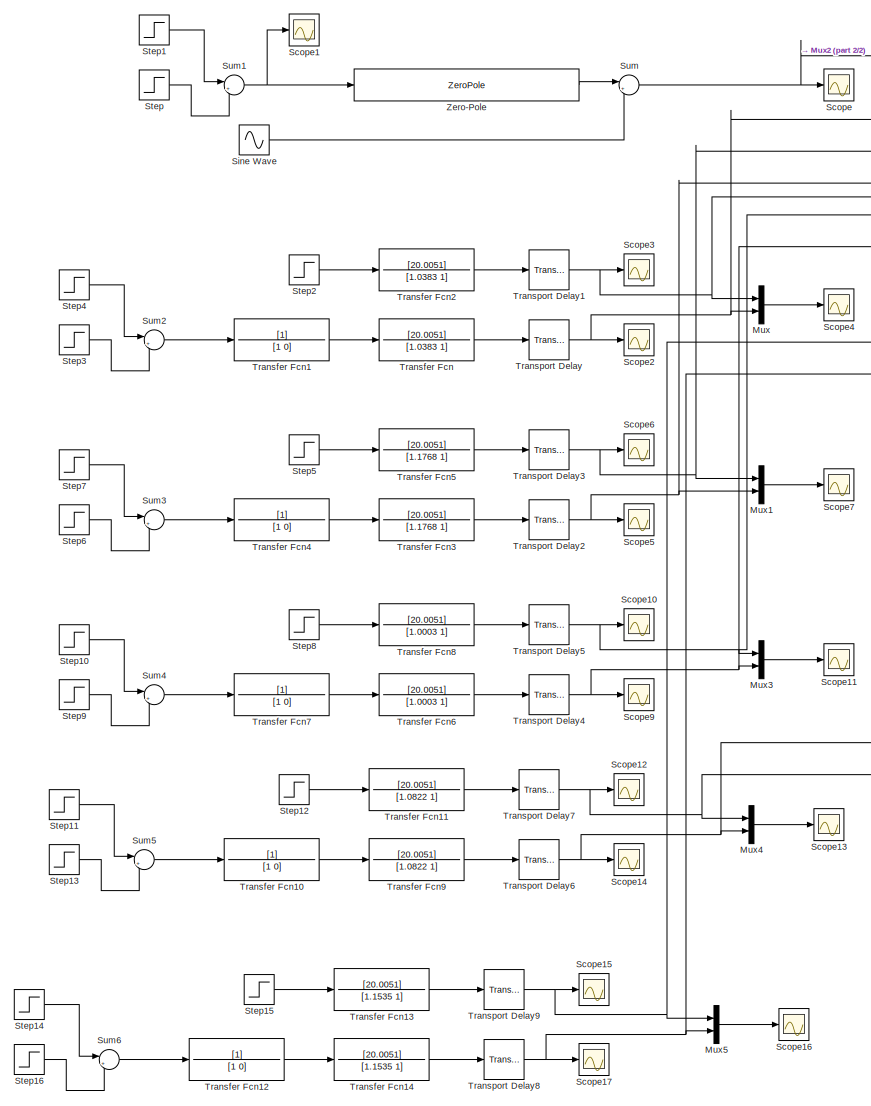
[diagram: root canvas - part 1/2, left side, full height]
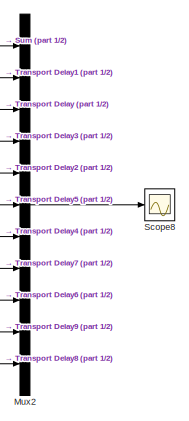
[diagram: root canvas - part 2/2, top right region]
MODEL slx_6b1b628f3b8a
KIND model
CONFIG AbsTol = auto
CONFIG EnableMultiTasking = off
CONFIG FixedStep = auto
CONFIG MaxStep = auto
CONFIG MinStep = auto
CONFIG RelTol = 1e-3
CONFIG SampleTimeConstraint = Unconstrained
CONFIG SolverName = VariableStepAuto
CONFIG StartTime = 0.0
CONFIG StopTime = 15
BLOCK [Mux] Mux
  DisplayOption = bar
  Inputs = 2
  Ports = [2, 1]
BLOCK [Mux] Mux1
  DisplayOption = bar
  Inputs = 2
  Ports = [2, 1]
BLOCK [Mux] Mux2
  DisplayOption = bar
  Inputs = 11
  Ports = [11, 1]
BLOCK [Mux] Mux3
  DisplayOption = bar
  Inputs = 2
  Ports = [2, 1]
BLOCK [Mux] Mux4
  DisplayOption = bar
  Inputs = 2
  Ports = [2, 1]
BLOCK [Mux] Mux5
  DisplayOption = bar
  Inputs = 2
  Ports = [2, 1]
BLOCK [Scope] Scope
  Floating = off
  NumInputPorts = 1
  Ports = [1]
  ScopeSpecificationString = Simulink.scopes.TimeScopeBlockCfg('CurrentConfiguration', extmgr.ConfigurationSet(extmgr.Configuration('Core','General UI',true,'FigureColor',[1 1 1]),extmgr.Configuration('Core','Source UI',true),extmgr.Configuration('Sources','WiredSimulink',true,'DataLogging',true,'DataLoggingVariableName','Q3','DataLoggingLimitDataPoints',true,'DataLoggingDecimateData',true,'DataLoggingSaveFormat','Array'),ext...<+1720ch>
BLOCK [Scope] Scope1
  Floating = off
  NumInputPorts = 1
  Ports = [1]
  ScopeSpecificationString = Simulink.scopes.TimeScopeBlockCfg('CurrentConfiguration', extmgr.ConfigurationSet(extmgr.Configuration('Core','General UI',true),extmgr.Configuration('Core','Source UI',true),extmgr.Configuration('Sources','WiredSimulink',true,'DataLoggingVariableName','ScopeData1'),extmgr.Configuration('Visuals','Time Domain',true,'SerializedDisplays',{struct('MinYLimReal','-0.125','MaxYLimReal','1.125','YLabelRe...<+1351ch>
BLOCK [Scope] Scope10
  Floating = off
  NumInputPorts = 1
  Ports = [1]
  ScopeSpecificationString = Simulink.scopes.TimeScopeBlockCfg('CurrentConfiguration', extmgr.ConfigurationSet(extmgr.Configuration('Core','General UI',true,'FigureColor',[1 1 1]),extmgr.Configuration('Core','Source UI',true),extmgr.Configuration('Sources','WiredSimulink',true,'DataLoggingVariableName','G3_3','DataLoggingSaveFormat','Array','DataLogging',true,'DataLoggingLimitDataPoints',true,'DataLoggingDecimateData',true),e...<+1735ch>
BLOCK [Scope] Scope11
  Floating = off
  NumInputPorts = 1
  Ports = [1]
  ScopeSpecificationString = Simulink.scopes.TimeScopeBlockCfg('CurrentConfiguration', extmgr.ConfigurationSet(extmgr.Configuration('Core','General UI',true,'FigureColor',[1 1 1]),extmgr.Configuration('Core','Source UI',true),extmgr.Configuration('Sources','WiredSimulink',true,'DataLoggingVariableName','ScopeData9','DataLoggingSaveFormat','Array'),extmgr.Configuration('Visuals','Time Domain',true,'SerializedDisplays',{struct(...<+1694ch>
BLOCK [Scope] Scope12
  Floating = off
  NumInputPorts = 1
  Ports = [1]
  ScopeSpecificationString = Simulink.scopes.TimeScopeBlockCfg('CurrentConfiguration', extmgr.ConfigurationSet(extmgr.Configuration('Core','General UI',true,'FigureColor',[1 1 1]),extmgr.Configuration('Core','Source UI',true),extmgr.Configuration('Sources','WiredSimulink',true,'DataLoggingVariableName','G3_4','DataLoggingSaveFormat','Array','DataLogging',true,'DataLoggingLimitDataPoints',true,'DataLoggingDecimateData',true),e...<+1735ch>
BLOCK [Scope] Scope13
  Floating = off
  NumInputPorts = 1
  Ports = [1]
  ScopeSpecificationString = Simulink.scopes.TimeScopeBlockCfg('CurrentConfiguration', extmgr.ConfigurationSet(extmgr.Configuration('Core','General UI',true,'FigureColor',[1 1 1]),extmgr.Configuration('Core','Source UI',true),extmgr.Configuration('Sources','WiredSimulink',true,'DataLoggingVariableName','ScopeData2','DataLoggingSaveFormat','Array'),extmgr.Configuration('Visuals','Time Domain',true,'SerializedDisplays',{struct(...<+1694ch>
BLOCK [Scope] Scope14
  Floating = off
  NumInputPorts = 1
  Ports = [1]
  ScopeSpecificationString = Simulink.scopes.TimeScopeBlockCfg('CurrentConfiguration', extmgr.ConfigurationSet(extmgr.Configuration('Core','General UI',true,'FigureColor',[1 1 1]),extmgr.Configuration('Core','Source UI',true),extmgr.Configuration('Sources','WiredSimulink',true,'DataLoggingVariableName','ScopeData3','DataLoggingSaveFormat','Array'),extmgr.Configuration('Visuals','Time Domain',true,'SerializedDisplays',{struct(...<+1669ch>
BLOCK [Scope] Scope15
  Floating = off
  NumInputPorts = 1
  Ports = [1]
  ScopeSpecificationString = Simulink.scopes.TimeScopeBlockCfg('CurrentConfiguration', extmgr.ConfigurationSet(extmgr.Configuration('Core','General UI',true,'FigureColor',[1 1 1]),extmgr.Configuration('Core','Source UI',true),extmgr.Configuration('Sources','WiredSimulink',true,'DataLoggingVariableName','G3_5','DataLoggingSaveFormat','Array','DataLogging',true,'DataLoggingLimitDataPoints',true,'DataLoggingDecimateData',true),e...<+1735ch>
BLOCK [Scope] Scope16
  Floating = off
  NumInputPorts = 1
  Ports = [1]
  ScopeSpecificationString = Simulink.scopes.TimeScopeBlockCfg('CurrentConfiguration', extmgr.ConfigurationSet(extmgr.Configuration('Core','General UI',true,'FigureColor',[1 1 1]),extmgr.Configuration('Core','Source UI',true),extmgr.Configuration('Sources','WiredSimulink',true,'DataLoggingVariableName','ScopeData5','DataLoggingSaveFormat','Array'),extmgr.Configuration('Visuals','Time Domain',true,'SerializedDisplays',{struct(...<+1694ch>
BLOCK [Scope] Scope17
  Floating = off
  NumInputPorts = 1
  Ports = [1]
  ScopeSpecificationString = Simulink.scopes.TimeScopeBlockCfg('CurrentConfiguration', extmgr.ConfigurationSet(extmgr.Configuration('Core','General UI',true,'FigureColor',[1 1 1]),extmgr.Configuration('Core','Source UI',true),extmgr.Configuration('Sources','WiredSimulink',true,'DataLoggingVariableName','ScopeData6','DataLoggingSaveFormat','Array'),extmgr.Configuration('Visuals','Time Domain',true,'SerializedDisplays',{struct(...<+1669ch>
BLOCK [Scope] Scope2
  Floating = off
  NumInputPorts = 1
  Ports = [1]
  ScopeSpecificationString = Simulink.scopes.TimeScopeBlockCfg('CurrentConfiguration', extmgr.ConfigurationSet(extmgr.Configuration('Core','General UI',true,'FigureColor',[1 1 1]),extmgr.Configuration('Core','Source UI',true),extmgr.Configuration('Sources','WiredSimulink',true,'DataLoggingVariableName','ScopeData1','DataLoggingSaveFormat','Array'),extmgr.Configuration('Visuals','Time Domain',true,'SerializedDisplays',{struct(...<+1669ch>
BLOCK [Scope] Scope3
  Floating = off
  NumInputPorts = 1
  Ports = [1]
  ScopeSpecificationString = Simulink.scopes.TimeScopeBlockCfg('CurrentConfiguration', extmgr.ConfigurationSet(extmgr.Configuration('Core','General UI',true,'FigureColor',[1 1 1]),extmgr.Configuration('Core','Source UI',true),extmgr.Configuration('Sources','WiredSimulink',true,'DataLoggingVariableName','G3_1','DataLoggingSaveFormat','Array','DataLogging',true,'DataLoggingLimitDataPoints',true,'DataLoggingDecimateData',true),e...<+1735ch>
BLOCK [Scope] Scope4
  Floating = off
  NumInputPorts = 1
  Ports = [1]
  ScopeSpecificationString = Simulink.scopes.TimeScopeBlockCfg('CurrentConfiguration', extmgr.ConfigurationSet(extmgr.Configuration('Core','General UI',true,'FigureColor',[1 1 1]),extmgr.Configuration('Core','Source UI',true),extmgr.Configuration('Sources','WiredSimulink',true,'DataLoggingVariableName','ScopeData3','DataLoggingSaveFormat','Array'),extmgr.Configuration('Visuals','Time Domain',true,'SerializedDisplays',{struct(...<+1694ch>
BLOCK [Scope] Scope5
  Floating = off
  NumInputPorts = 1
  Ports = [1]
  ScopeSpecificationString = Simulink.scopes.TimeScopeBlockCfg('CurrentConfiguration', extmgr.ConfigurationSet(extmgr.Configuration('Core','General UI',true,'FigureColor',[1 1 1]),extmgr.Configuration('Core','Source UI',true),extmgr.Configuration('Sources','WiredSimulink',true,'DataLoggingVariableName','ScopeData4','DataLoggingSaveFormat','Array'),extmgr.Configuration('Visuals','Time Domain',true,'SerializedDisplays',{struct(...<+1703ch>
BLOCK [Scope] Scope6
  Floating = off
  NumInputPorts = 1
  Ports = [1]
  ScopeSpecificationString = Simulink.scopes.TimeScopeBlockCfg('CurrentConfiguration', extmgr.ConfigurationSet(extmgr.Configuration('Core','General UI',true,'FigureColor',[1 1 1]),extmgr.Configuration('Core','Source UI',true),extmgr.Configuration('Sources','WiredSimulink',true,'DataLoggingVariableName','G3_2','DataLoggingSaveFormat','Array','DataLogging',true,'DataLoggingLimitDataPoints',true,'DataLoggingDecimateData',true),e...<+1780ch>
BLOCK [Scope] Scope7
  Floating = off
  NumInputPorts = 1
  Ports = [1]
  ScopeSpecificationString = Simulink.scopes.TimeScopeBlockCfg('CurrentConfiguration', extmgr.ConfigurationSet(extmgr.Configuration('Core','General UI',true,'FigureColor',[1 1 1]),extmgr.Configuration('Core','Source UI',true),extmgr.Configuration('Sources','WiredSimulink',true,'DataLoggingVariableName','ScopeData6','DataLoggingSaveFormat','Array'),extmgr.Configuration('Visuals','Time Domain',true,'SerializedDisplays',{struct(...<+1694ch>
BLOCK [Scope] Scope8
  Floating = off
  NumInputPorts = 1
  Ports = [1]
  ScopeSpecificationString = Simulink.scopes.TimeScopeBlockCfg('CurrentConfiguration', extmgr.ConfigurationSet(extmgr.Configuration('Core','General UI',true,'FigureColor',[1 1 1]),extmgr.Configuration('Core','Source UI',true),extmgr.Configuration('Sources','WiredSimulink',true,'DataLoggingVariableName','ScopeData7','DataLoggingSaveFormat','Array'),extmgr.Configuration('Visuals','Time Domain',true,'SerializedDisplays',{struct(...<+2118ch>
BLOCK [Scope] Scope9
  Floating = off
  NumInputPorts = 1
  Ports = [1]
  ScopeSpecificationString = Simulink.scopes.TimeScopeBlockCfg('CurrentConfiguration', extmgr.ConfigurationSet(extmgr.Configuration('Core','General UI',true,'FigureColor',[1 1 1]),extmgr.Configuration('Core','Source UI',true),extmgr.Configuration('Sources','WiredSimulink',true,'DataLoggingVariableName','ScopeData10','DataLoggingSaveFormat','Array'),extmgr.Configuration('Visuals','Time Domain',true,'SerializedDisplays',{struct...<+1670ch>
BLOCK [Sin] Sine Wave
  Amplitude = 0.05
  Frequency = 40
  Ports = [0, 1]
  SampleTime = 0
BLOCK [Step] Step
  After = 0
  SampleTime = 0
  Time = 0
BLOCK [Step] Step1
  After = 0
  Before = 1
  SampleTime = 0
  Time = 0.1
BLOCK [Step] Step10
  After = 0
  Before = 1
  SampleTime = 0
  Time = 0.1
BLOCK [Step] Step11
  After = 0
  Before = 1
  SampleTime = 0
  Time = 0.1
BLOCK [Step] Step12
  After = 0.1
  SampleTime = 0
  Time = 0
BLOCK [Step] Step13
  After = 0
  SampleTime = 0
  Time = 0
BLOCK [Step] Step14
  After = 0
  Before = 1
  SampleTime = 0
  Time = 0.1
BLOCK [Step] Step15
  After = 0.1
  SampleTime = 0
  Time = 0
BLOCK [Step] Step16
  After = 0
  SampleTime = 0
  Time = 0
BLOCK [Step] Step2
  After = 0.1
  SampleTime = 0
  Time = 0
BLOCK [Step] Step3
  After = 0
  SampleTime = 0
  Time = 0
BLOCK [Step] Step4
  After = 0
  Before = 1
  SampleTime = 0
  Time = 0.1
BLOCK [Step] Step5
  After = 0.1
  SampleTime = 0
  Time = 0
BLOCK [Step] Step6
  After = 0
  SampleTime = 0
  Time = 0
BLOCK [Step] Step7
  After = 0
  Before = 1
  SampleTime = 0
  Time = 0.1
BLOCK [Step] Step8
  After = 0.1
  SampleTime = 0
  Time = 0
BLOCK [Step] Step9
  After = 0
  SampleTime = 0
  Time = 0
BLOCK [Sum] Sum
  Inputs = |++
  Ports = [2, 1]
BLOCK [Sum] Sum1
  Inputs = |++
  Ports = [2, 1]
BLOCK [Sum] Sum2
  Inputs = |++
  Ports = [2, 1]
BLOCK [Sum] Sum3
  Inputs = |++
  Ports = [2, 1]
BLOCK [Sum] Sum4
  Inputs = |++
  Ports = [2, 1]
BLOCK [Sum] Sum5
  Inputs = |++
  Ports = [2, 1]
BLOCK [Sum] Sum6
  Inputs = |++
  Ports = [2, 1]
BLOCK [TransferFcn] Transfer Fcn
  Denominator = [1.0383 1]
  Numerator = [20.0051]
BLOCK [TransferFcn] Transfer Fcn1
  Denominator = [1 0]
BLOCK [TransferFcn] Transfer Fcn10
  Denominator = [1 0]
BLOCK [TransferFcn] Transfer Fcn11
  Denominator = [1.0822 1]
  Numerator = [20.0051]
BLOCK [TransferFcn] Transfer Fcn12
  Denominator = [1 0]
BLOCK [TransferFcn] Transfer Fcn13
  Denominator = [1.1535 1]
  Numerator = [20.0051]
BLOCK [TransferFcn] Transfer Fcn14
  Denominator = [1.1535 1]
  Numerator = [20.0051]
BLOCK [TransferFcn] Transfer Fcn2
  Denominator = [1.0383 1]
  Numerator = [20.0051]
BLOCK [TransferFcn] Transfer Fcn3
  Denominator = [1.1768 1]
  Numerator = [20.0051]
BLOCK [TransferFcn] Transfer Fcn4
  Denominator = [1 0]
BLOCK [TransferFcn] Transfer Fcn5
  Denominator = [1.1768 1]
  Numerator = [20.0051]
BLOCK [TransferFcn] Transfer Fcn6
  Denominator = [1.0003 1]
  Numerator = [20.0051]
BLOCK [TransferFcn] Transfer Fcn7
  Denominator = [1 0]
BLOCK [TransferFcn] Transfer Fcn8
  Denominator = [1.0003 1]
  Numerator = [20.0051]
BLOCK [TransferFcn] Transfer Fcn9
  Denominator = [1.0822 1]
  Numerator = [20.0051]
BLOCK [TransportDelay] Transport Delay
  DelayTime = 0.8488
  Ports = [1, 1]
BLOCK [TransportDelay] Transport Delay1
  DelayTime = 0.8488
  Ports = [1, 1]
BLOCK [TransportDelay] Transport Delay2
  DelayTime = 0.8488
  Ports = [1, 1]
BLOCK [TransportDelay] Transport Delay3
  DelayTime = 0.8488
  Ports = [1, 1]
BLOCK [TransportDelay] Transport Delay4
  DelayTime = 0.8488
  Ports = [1, 1]
BLOCK [TransportDelay] Transport Delay5
  DelayTime = 0.8488
  Ports = [1, 1]
BLOCK [TransportDelay] Transport Delay6
  DelayTime = 0.8488
  Ports = [1, 1]
BLOCK [TransportDelay] Transport Delay7
  DelayTime = 0.8488
  Ports = [1, 1]
BLOCK [TransportDelay] Transport Delay8
  DelayTime = 0.8488
  Ports = [1, 1]
BLOCK [TransportDelay] Transport Delay9
  DelayTime = 0.8488
  Ports = [1, 1]
BLOCK [ZeroPole] Zero-Pole
  Gain = [120]
  Poles = [ 0 -1 -2 -3]
  Zeros = []
LINE Mux1:1 -> Scope7:1
LINE Mux2:1 -> Scope8:1
LINE Mux3:1 -> Scope11:1
LINE Mux4:1 -> Scope13:1
LINE Mux5:1 -> Scope16:1
LINE Mux:1 -> Scope4:1
LINE Sine Wave:1 -> Sum:2
LINE Step10:1 -> Sum4:1
LINE Step11:1 -> Sum5:1
LINE Step12:1 -> Transfer Fcn11:1
LINE Step13:1 -> Sum5:2
LINE Step14:1 -> Sum6:1
LINE Step15:1 -> Transfer Fcn13:1
LINE Step16:1 -> Sum6:2
LINE Step1:1 -> Sum1:1
LINE Step2:1 -> Transfer Fcn2:1
LINE Step3:1 -> Sum2:2
LINE Step4:1 -> Sum2:1
LINE Step5:1 -> Transfer Fcn5:1
LINE Step6:1 -> Sum3:2
LINE Step7:1 -> Sum3:1
LINE Step8:1 -> Transfer Fcn8:1
LINE Step9:1 -> Sum4:2
LINE Step:1 -> Sum1:2
NET Sum1:1 -> Scope1:1, Zero-Pole:1
LINE Sum2:1 -> Transfer Fcn1:1
LINE Sum3:1 -> Transfer Fcn4:1
LINE Sum4:1 -> Transfer Fcn7:1
LINE Sum5:1 -> Transfer Fcn10:1
LINE Sum6:1 -> Transfer Fcn12:1
NET Sum:1 -> Mux2:1, Scope:1
LINE Transfer Fcn10:1 -> Transfer Fcn9:1
LINE Transfer Fcn11:1 -> Transport Delay7:1
LINE Transfer Fcn12:1 -> Transfer Fcn14:1
LINE Transfer Fcn13:1 -> Transport Delay9:1
LINE Transfer Fcn14:1 -> Transport Delay8:1
LINE Transfer Fcn1:1 -> Transfer Fcn:1
LINE Transfer Fcn2:1 -> Transport Delay1:1
LINE Transfer Fcn3:1 -> Transport Delay2:1
LINE Transfer Fcn4:1 -> Transfer Fcn3:1
LINE Transfer Fcn5:1 -> Transport Delay3:1
LINE Transfer Fcn6:1 -> Transport Delay4:1
LINE Transfer Fcn7:1 -> Transfer Fcn6:1
LINE Transfer Fcn8:1 -> Transport Delay5:1
LINE Transfer Fcn9:1 -> Transport Delay6:1
LINE Transfer Fcn:1 -> Transport Delay:1
NET Transport Delay1:1 -> Mux2:2, Mux:1, Scope3:1
NET Transport Delay2:1 -> Mux1:2, Mux2:5, Scope5:1
NET Transport Delay3:1 -> Mux1:1, Mux2:4, Scope6:1
NET Transport Delay4:1 -> Mux2:7, Mux3:2, Scope9:1
NET Transport Delay5:1 -> Mux2:6, Mux3:1, Scope10:1
NET Transport Delay6:1 -> Mux2:9, Mux4:2, Scope14:1
NET Transport Delay7:1 -> Mux2:8, Mux4:1, Scope12:1
NET Transport Delay8:1 -> Mux2:11, Mux5:2, Scope17:1
NET Transport Delay9:1 -> Mux2:10, Mux5:1, Scope15:1
NET Transport Delay:1 -> Mux2:3, Mux:2, Scope2:1
LINE Zero-Pole:1 -> Sum:1
note: NET lines group one-source signal fan-out (src -> all destinations, sorted); 1:1 wires keep LINE
